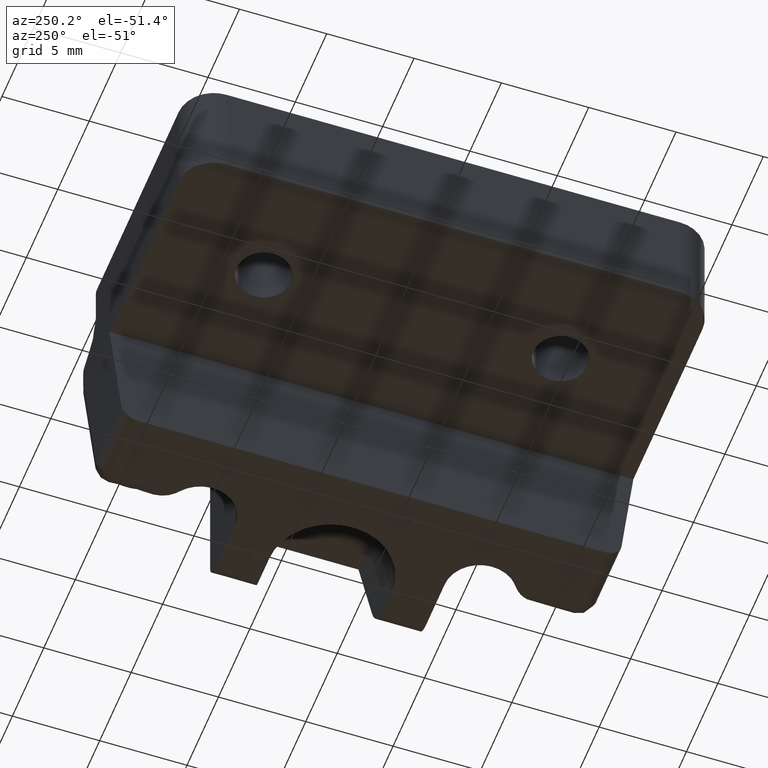
[diagram: clean part render]
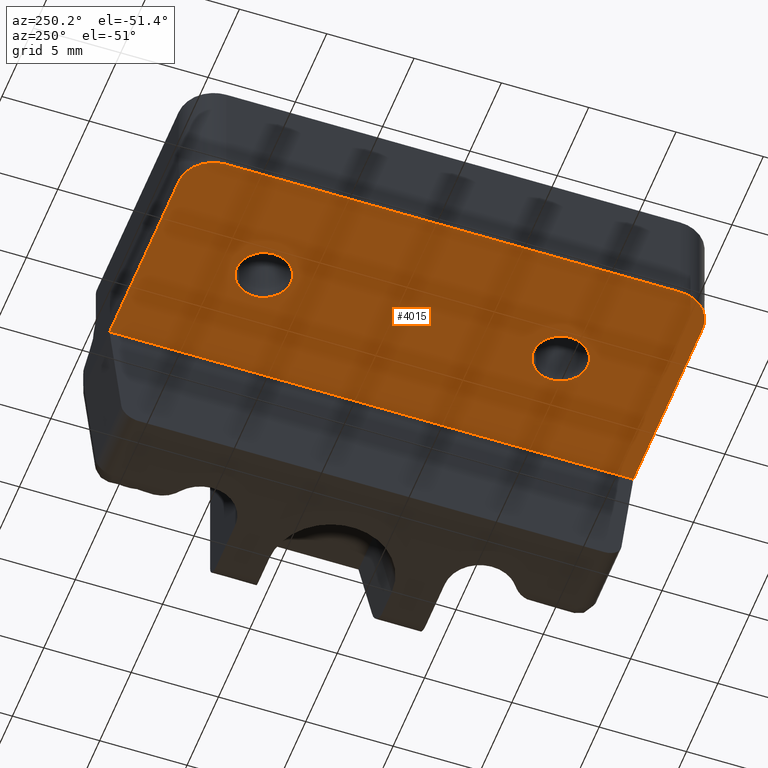
[diagram: same view with one face highlighted and labeled with its STEP entity id]
A machine part, auxiliary view. The second image highlights one B-rep face of the part: STEP entity #4015.
In plain terms, the highlighted face is a freeform B-spline surface patch.
Its self-contained STEP definition (entity closure, byte-faithful):
#66=CARTESIAN_POINT('',(-182.682950599423890,-1.039165058778526,38.499999999999979));
#67=VERTEX_POINT('',#66);
#68=CARTESIAN_POINT('',(-180.949999999999990,0.499999999999858,38.500000000000000));
#69=VERTEX_POINT('',#68);
#70=CARTESIAN_POINT('',(-182.682950599423950,-1.039165058778526,38.499999999999979));
#71=CARTESIAN_POINT('',(-182.591796140287640,-1.050000000000142,38.499999999999993));
#72=CARTESIAN_POINT('',(-182.500000000000000,-1.050000000000142,38.500000000000000));
#73=CARTESIAN_POINT('',(-180.950000000000050,-1.050000000000142,38.500000000000000));
#74=CARTESIAN_POINT('',(-180.949999999999990,0.499999999999858,38.500000000000000));
#82=(BOUNDED_CURVE()B_SPLINE_CURVE(2,(#70,#71,#72,#73,#74),.UNSPECIFIED.,.F.,.U.)B_SPLINE_CURVE_WITH_KNOTS((3,2,3),(0.729562744099891,0.750000000000000,1.0),.UNSPECIFIED.)CURVE()GEOMETRIC_REPRESENTATION_ITEM()RATIONAL_B_SPLINE_CURVE((0.956027284544770,0.976056265342812,1.0,0.707106781186547,1.0))REPRESENTATION_ITEM(''));
#83=EDGE_CURVE('',#67,#69,#82,.T.);
#124=CARTESIAN_POINT('',(-182.405374763646510,2.047108937549197,38.500000000000000));
#125=VERTEX_POINT('',#124);
#131=CARTESIAN_POINT('',(-180.949999999999990,0.499999999999858,38.500000000000000));
#132=CARTESIAN_POINT('',(-180.950000000000050,1.958094403563045,38.499999999999993));
#133=CARTESIAN_POINT('',(-182.405374763646510,2.047108937549195,38.500000000000000));
#141=(BOUNDED_CURVE()B_SPLINE_CURVE(2,(#131,#132,#133),.UNSPECIFIED.,.F.,.U.)B_SPLINE_CURVE_WITH_KNOTS((3,3),(0.0,0.239332962225356),.UNSPECIFIED.)CURVE()GEOMETRIC_REPRESENTATION_ITEM()RATIONAL_B_SPLINE_CURVE((1.0,0.719603993302628,0.976072041637599))REPRESENTATION_ITEM(''));
#142=EDGE_CURVE('',#69,#125,#141,.T.);
#169=CARTESIAN_POINT('',(-184.050000000000010,0.499999999999858,38.500000000000000));
#170=VERTEX_POINT('',#169);
#171=CARTESIAN_POINT('',(-184.050000000000010,0.499999999999858,38.500000000000000));
#172=CARTESIAN_POINT('',(-184.049999999999950,-0.876672734873422,38.500000000000000));
#173=CARTESIAN_POINT('',(-182.682950599423950,-1.039165058778526,38.499999999999979));
#181=(BOUNDED_CURVE()B_SPLINE_CURVE(2,(#171,#172,#173),.UNSPECIFIED.,.F.,.U.)B_SPLINE_CURVE_WITH_KNOTS((3,3),(0.500000000000000,0.729562744099891),.UNSPECIFIED.)CURVE()GEOMETRIC_REPRESENTATION_ITEM()RATIONAL_B_SPLINE_CURVE((1.0,0.731050515843736,0.956027284544770))REPRESENTATION_ITEM(''));
#182=EDGE_CURVE('',#170,#67,#181,.T.);
#184=CARTESIAN_POINT('',(-182.405374763646510,2.047108937549195,38.500000000000000));
#185=CARTESIAN_POINT('',(-182.452643216812500,2.049999999999859,38.500000000000000));
#186=CARTESIAN_POINT('',(-182.500000000000000,2.049999999999859,38.500000000000000));
#187=CARTESIAN_POINT('',(-184.049999999999930,2.049999999999858,38.500000000000000));
#188=CARTESIAN_POINT('',(-184.050000000000010,0.499999999999858,38.500000000000000));
#196=(BOUNDED_CURVE()B_SPLINE_CURVE(2,(#184,#185,#186,#187,#188),.UNSPECIFIED.,.F.,.U.)B_SPLINE_CURVE_WITH_KNOTS((3,2,3),(0.239332962225356,0.250000000000000,0.500000000000000),.UNSPECIFIED.)CURVE()GEOMETRIC_REPRESENTATION_ITEM()RATIONAL_B_SPLINE_CURVE((0.976072041637599,0.987502787883920,1.0,0.707106781186547,1.0))REPRESENTATION_ITEM(''));
#197=EDGE_CURVE('',#125,#170,#196,.T.);
#256=CARTESIAN_POINT('',(-182.682950599423890,-18.039165058778380,38.499999999999979));
#257=VERTEX_POINT('',#256);
#258=CARTESIAN_POINT('',(-180.949999999999990,-16.500000000000000,38.500000000000000));
#259=VERTEX_POINT('',#258);
#260=CARTESIAN_POINT('',(-182.682950599423890,-18.039165058778377,38.499999999999986));
#261=CARTESIAN_POINT('',(-182.591796140287640,-18.049999999999997,38.500000000000000));
#262=CARTESIAN_POINT('',(-182.500000000000000,-18.050000000000001,38.500000000000000));
#263=CARTESIAN_POINT('',(-180.950000000000050,-18.049999999999997,38.500000000000000));
#264=CARTESIAN_POINT('',(-180.949999999999990,-16.500000000000000,38.500000000000000));
#272=(BOUNDED_CURVE()B_SPLINE_CURVE(2,(#260,#261,#262,#263,#264),.UNSPECIFIED.,.F.,.U.)B_SPLINE_CURVE_WITH_KNOTS((3,2,3),(0.729562744099891,0.750000000000000,1.0),.UNSPECIFIED.)CURVE()GEOMETRIC_REPRESENTATION_ITEM()RATIONAL_B_SPLINE_CURVE((0.956027284544769,0.976056265342812,1.0,0.707106781186547,1.0))REPRESENTATION_ITEM(''));
#273=EDGE_CURVE('',#257,#259,#272,.T.);
#314=CARTESIAN_POINT('',(-182.405374763646510,-14.952891062450661,38.500000000000000));
#315=VERTEX_POINT('',#314);
#321=CARTESIAN_POINT('',(-180.949999999999990,-16.500000000000000,38.500000000000000));
#322=CARTESIAN_POINT('',(-180.950000000000020,-15.041905596436820,38.500000000000007));
#323=CARTESIAN_POINT('',(-182.405374763646560,-14.952891062450664,38.500000000000007));
#331=(BOUNDED_CURVE()B_SPLINE_CURVE(2,(#321,#322,#323),.UNSPECIFIED.,.F.,.U.)B_SPLINE_CURVE_WITH_KNOTS((3,3),(0.0,0.239332962225356),.UNSPECIFIED.)CURVE()GEOMETRIC_REPRESENTATION_ITEM()RATIONAL_B_SPLINE_CURVE((1.0,0.719603993302628,0.976072041637599))REPRESENTATION_ITEM(''));
#332=EDGE_CURVE('',#259,#315,#331,.T.);
#359=CARTESIAN_POINT('',(-184.050000000000010,-16.500000000000000,38.500000000000000));
#360=VERTEX_POINT('',#359);
#361=CARTESIAN_POINT('',(-184.050000000000010,-16.500000000000000,38.500000000000000));
#362=CARTESIAN_POINT('',(-184.049999999999930,-17.876672734873285,38.500000000000007));
#363=CARTESIAN_POINT('',(-182.682950599423890,-18.039165058778377,38.499999999999986));
#371=(BOUNDED_CURVE()B_SPLINE_CURVE(2,(#361,#362,#363),.UNSPECIFIED.,.F.,.U.)B_SPLINE_CURVE_WITH_KNOTS((3,3),(0.500000000000000,0.729562744099891),.UNSPECIFIED.)CURVE()GEOMETRIC_REPRESENTATION_ITEM()RATIONAL_B_SPLINE_CURVE((1.0,0.731050515843736,0.956027284544769))REPRESENTATION_ITEM(''));
#372=EDGE_CURVE('',#360,#257,#371,.T.);
#374=CARTESIAN_POINT('',(-182.405374763646480,-14.952891062450659,38.500000000000000));
#375=CARTESIAN_POINT('',(-182.452643216812530,-14.950000000000001,38.500000000000000));
#376=CARTESIAN_POINT('',(-182.500000000000000,-14.949999999999999,38.500000000000000));
#377=CARTESIAN_POINT('',(-184.049999999999930,-14.949999999999994,38.500000000000000));
#378=CARTESIAN_POINT('',(-184.050000000000010,-16.500000000000000,38.500000000000000));
#386=(BOUNDED_CURVE()B_SPLINE_CURVE(2,(#374,#375,#376,#377,#378),.UNSPECIFIED.,.F.,.U.)B_SPLINE_CURVE_WITH_KNOTS((3,2,3),(0.239332962225356,0.250000000000000,0.500000000000000),.UNSPECIFIED.)CURVE()GEOMETRIC_REPRESENTATION_ITEM()RATIONAL_B_SPLINE_CURVE((0.976072041637599,0.987502787883920,1.0,0.707106781186547,1.0))REPRESENTATION_ITEM(''));
#387=EDGE_CURVE('',#315,#360,#386,.T.);
#3846=CARTESIAN_POINT('',(-176.0,7.0,38.500000000000000));
#3847=VERTEX_POINT('',#3846);
#3866=CARTESIAN_POINT('',(-176.0,-23.0,38.500000000000000));
#3867=VERTEX_POINT('',#3866);
#3942=CARTESIAN_POINT('',(-189.649349974803500,-24.498500397910181,38.500000000000000));
#3943=CARTESIAN_POINT('',(-175.350649676509390,-24.498500397910181,38.500000000000000));
#3944=CARTESIAN_POINT('',(-189.649349974803500,8.498498520363867,38.500000000000000));
#3945=CARTESIAN_POINT('',(-175.350649676509390,8.498498520363867,38.500000000000000));
#3946=B_SPLINE_SURFACE_WITH_KNOTS('',1,1,((#3942,#3944),(#3943,#3945)),.UNSPECIFIED.,.F.,.F.,.U.,(2,2),(2,2),(0.0,14.298700298294129),(0.0,32.996998918274052),.UNSPECIFIED.);
#3947=CARTESIAN_POINT('',(-189.0,5.0,38.500000000000000));
#3948=VERTEX_POINT('',#3947);
#3949=CARTESIAN_POINT('',(-187.0,7.0,38.500000000000000));
#3950=VERTEX_POINT('',#3949);
#3951=CARTESIAN_POINT('',(-189.0,5.0,38.500000000000000));
#3952=CARTESIAN_POINT('',(-189.000000000000030,6.999999999999999,38.500000000000000));
#3953=CARTESIAN_POINT('',(-187.0,7.0,38.500000000000000));
#3961=(BOUNDED_CURVE()B_SPLINE_CURVE(2,(#3951,#3952,#3953),.UNSPECIFIED.,.F.,.U.)CURVE()GEOMETRIC_REPRESENTATION_ITEM()QUASI_UNIFORM_CURVE()RATIONAL_B_SPLINE_CURVE((1.0,0.707106781186548,1.0))REPRESENTATION_ITEM(''));
#3962=EDGE_CURVE('',#3948,#3950,#3961,.T.);
#3963=ORIENTED_EDGE('',*,*,#3962,.T.);
#3964=CARTESIAN_POINT('',(-176.0,7.0,38.500000000000000));
#3965=CARTESIAN_POINT('',(-187.0,7.0,38.500000000000000));
#3966=QUASI_UNIFORM_CURVE('',1,(#3964,#3965),.UNSPECIFIED.,.F.,.U.);
#3967=EDGE_CURVE('',#3847,#3950,#3966,.T.);
#3968=ORIENTED_EDGE('',*,*,#3967,.F.);
#3969=CARTESIAN_POINT('',(-176.0,7.0,38.500000000000000));
#3970=CARTESIAN_POINT('',(-176.0,-23.0,38.500000000000000));
#3971=QUASI_UNIFORM_CURVE('',1,(#3969,#3970),.UNSPECIFIED.,.F.,.U.);
#3972=EDGE_CURVE('',#3847,#3867,#3971,.T.);
#3973=ORIENTED_EDGE('',*,*,#3972,.T.);
#3974=CARTESIAN_POINT('',(-187.0,-23.0,38.500000000000000));
#3975=VERTEX_POINT('',#3974);
#3976=CARTESIAN_POINT('',(-176.0,-23.0,38.500000000000000));
#3977=CARTESIAN_POINT('',(-187.0,-23.0,38.500000000000000));
#3978=QUASI_UNIFORM_CURVE('',1,(#3976,#3977),.UNSPECIFIED.,.F.,.U.);
#3979=EDGE_CURVE('',#3867,#3975,#3978,.T.);
#3980=ORIENTED_EDGE('',*,*,#3979,.T.);
#3981=CARTESIAN_POINT('',(-189.0,-21.0,38.500000000000000));
#3982=VERTEX_POINT('',#3981);
#3983=CARTESIAN_POINT('',(-187.0,-23.0,38.500000000000000));
#3984=CARTESIAN_POINT('',(-189.000000000000030,-22.999999999999993,38.500000000000000));
#3985=CARTESIAN_POINT('',(-189.0,-21.0,38.500000000000000));
#3993=(BOUNDED_CURVE()B_SPLINE_CURVE(2,(#3983,#3984,#3985),.UNSPECIFIED.,.F.,.U.)CURVE()GEOMETRIC_REPRESENTATION_ITEM()QUASI_UNIFORM_CURVE()RATIONAL_B_SPLINE_CURVE((1.0,0.707106781186548,1.0))REPRESENTATION_ITEM(''));
#3994=EDGE_CURVE('',#3975,#3982,#3993,.T.);
#3995=ORIENTED_EDGE('',*,*,#3994,.T.);
#3996=CARTESIAN_POINT('',(-189.0,-21.0,38.500000000000000));
#3997=CARTESIAN_POINT('',(-189.0,5.0,38.500000000000000));
#3998=QUASI_UNIFORM_CURVE('',1,(#3996,#3997),.UNSPECIFIED.,.F.,.U.);
#3999=EDGE_CURVE('',#3982,#3948,#3998,.T.);
#4000=ORIENTED_EDGE('',*,*,#3999,.T.);
#4001=EDGE_LOOP('',(#3963,#3968,#3973,#3980,#3995,#4000));
#4002=FACE_OUTER_BOUND('',#4001,.T.);
#4003=ORIENTED_EDGE('',*,*,#332,.T.);
#4004=ORIENTED_EDGE('',*,*,#387,.T.);
#4005=ORIENTED_EDGE('',*,*,#372,.T.);
#4006=ORIENTED_EDGE('',*,*,#273,.T.);
#4007=EDGE_LOOP('',(#4003,#4004,#4005,#4006));
#4008=FACE_BOUND('',#4007,.T.);
#4009=ORIENTED_EDGE('',*,*,#142,.T.);
#4010=ORIENTED_EDGE('',*,*,#197,.T.);
#4011=ORIENTED_EDGE('',*,*,#182,.T.);
#4012=ORIENTED_EDGE('',*,*,#83,.T.);
#4013=EDGE_LOOP('',(#4009,#4010,#4011,#4012));
#4014=FACE_BOUND('',#4013,.T.);
#4015=ADVANCED_FACE('',(#4002,#4008,#4014),#3946,.F.);